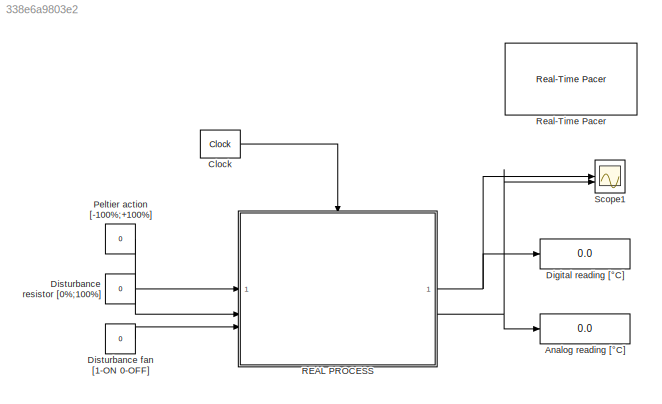
MODEL slx_338e6a9803e2
KIND model
CONFIG AbsTol = auto
CONFIG EnableMultiTasking = off
CONFIG FixedStep = auto
CONFIG MaxStep = auto
CONFIG MinStep = auto
CONFIG RelTol = 1e-3
CONFIG SampleTimeConstraint = Unconstrained
CONFIG SolverName = VariableStepAuto
CONFIG StartTime = 0.0
CONFIG StopTime = 600
BLOCK [Display] Analog reading [°C]
  Decimation = 1
BLOCK [Reference] Clock  REF=simulink_extras/Flip Flops/Clock
  SourceBlock = simulink_extras/Flip Flops/Clock
  SourceType = Digital clock
BLOCK [Display] Digital reading [°C]
  Decimation = 1
BLOCK [Constant] Disturbance fan [1-ON 0-OFF]
  Value = 0
BLOCK [Constant] Disturbance resistor [0%;100%]
  Value = 0
BLOCK [Constant] Peltier action [-100%;+100%]
  Value = 0
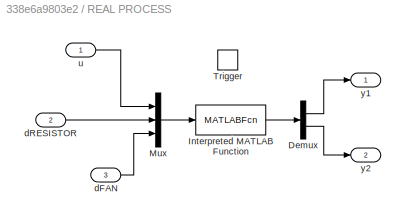
BLOCK [SubSystem] REAL PROCESS
BLOCK [Demux] REAL PROCESS/Demux
  Outputs = 2
BLOCK [MATLABFcn] REAL PROCESS/Interpreted MATLAB Function
  MATLABFcn = setActuatorsAndReadTemperatureSIM
  OutputDimensions = 2
BLOCK [Mux] REAL PROCESS/Mux
  DisplayOption = bar
  Inputs = 3
BLOCK [TriggerPort] REAL PROCESS/Trigger
  PortDimensions = 1
  StatesWhenEnabling = held
  VariantControl = (inherit)
BLOCK [Inport] REAL PROCESS/dFAN
  Port = 3
BLOCK [Inport] REAL PROCESS/dRESISTOR
  Port = 2
BLOCK [Inport] REAL PROCESS/u
BLOCK [Outport] REAL PROCESS/y1
BLOCK [Outport] REAL PROCESS/y2
  Port = 2
BLOCK [Reference] Real-Time Pacer  REF=realtime_pacer_lib/Real-Time Pacer
  SourceBlock = realtime_pacer_lib/Real-Time Pacer
  SourceProductName = Real-Time Pacer
  SourceType = RealTime_Pacer
BLOCK [Scope] Scope1
  Floating = off
  NumInputPorts = 2
  ScopeSpecificationString = Simulink.scopes.TimeScopeBlockCfg('CurrentConfiguration', extmgr.ConfigurationSet(extmgr.Configuration('Core','General UI',true),extmgr.Configuration('Core','Source UI',true),extmgr.Configuration('Sources','WiredSimulink',true,'DataLoggingVariableName','ScopeData1'),extmgr.Configuration('Visuals','Time Domain',true,'SerializedDisplays',{struct('MinYLimReal','-3.39','MaxYLimReal','30.51','YLabelRea...<+1527ch>
LINE Clock:1 -> REAL PROCESS:trigger
LINE Disturbance fan [1-ON 0-OFF]:1 -> REAL PROCESS:3
LINE Disturbance resistor [0%;100%]:1 -> REAL PROCESS:2
LINE Peltier action [-100%;+100%]:1 -> REAL PROCESS:1
LINE REAL PROCESS/Demux:1 -> REAL PROCESS/y1:1
LINE REAL PROCESS/Demux:2 -> REAL PROCESS/y2:1
LINE REAL PROCESS/Interpreted MATLAB Function:1 -> REAL PROCESS/Demux:1
LINE REAL PROCESS/Mux:1 -> REAL PROCESS/Interpreted MATLAB Function:1
LINE REAL PROCESS/dFAN:1 -> REAL PROCESS/Mux:3
LINE REAL PROCESS/dRESISTOR:1 -> REAL PROCESS/Mux:2
LINE REAL PROCESS/u:1 -> REAL PROCESS/Mux:1
NET REAL PROCESS:1 -> Digital reading [°C]:1, Scope1:1
NET REAL PROCESS:2 -> Analog reading [°C]:1, Scope1:2
note: NET lines group one-source signal fan-out (src -> all destinations, sorted); 1:1 wires keep LINE
